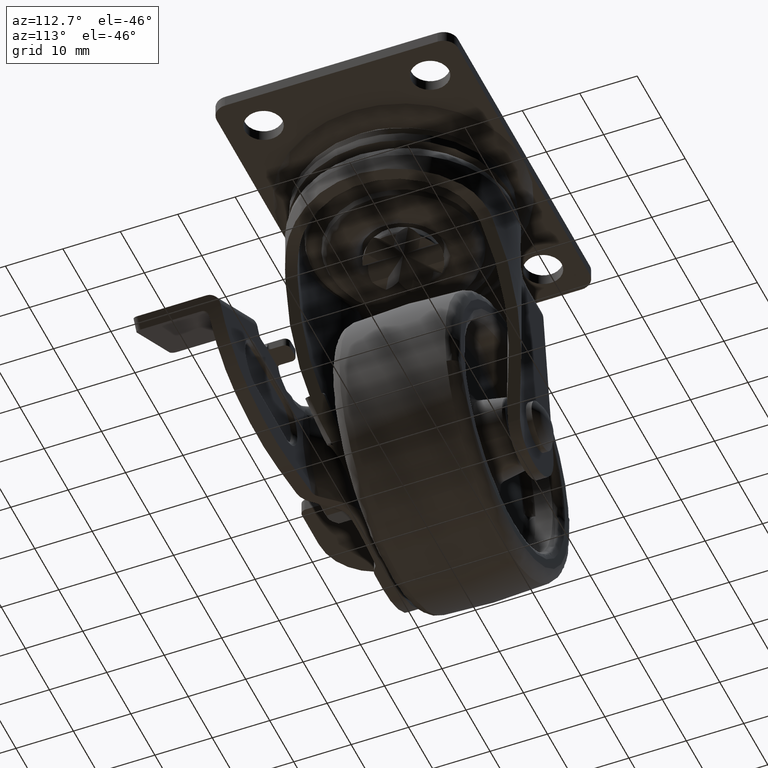
[diagram: clean part render]
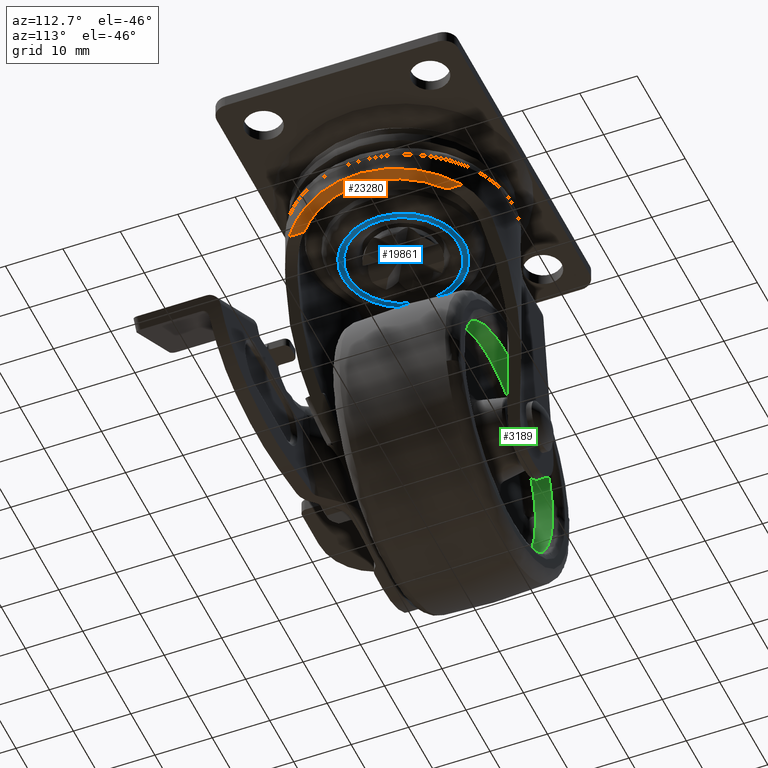
[diagram: same view with three faces highlighted in distinct colors, each labeled with its STEP entity id]
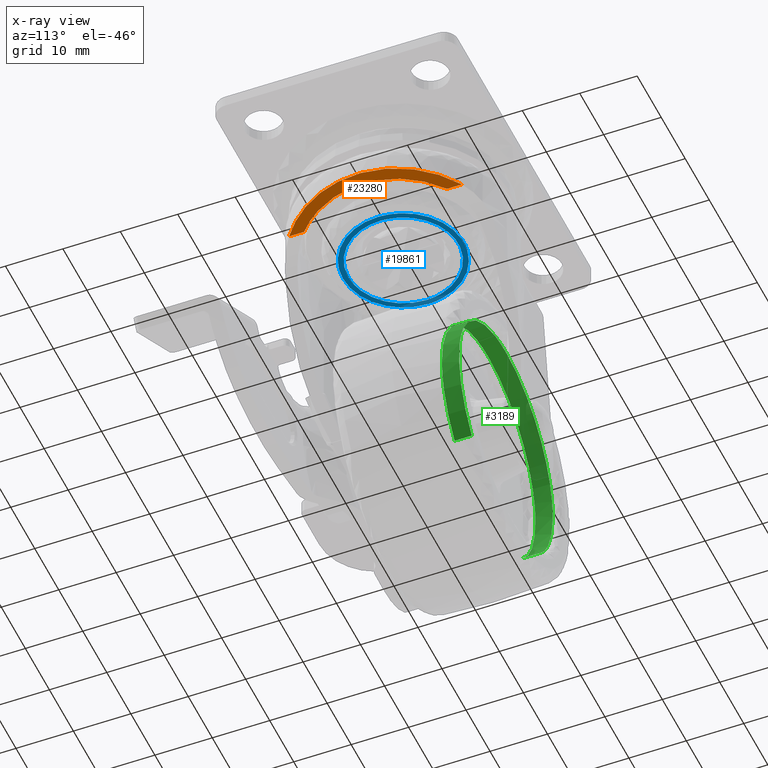
[diagram: x-ray of the same camera — body ghosted, the three highlighted faces saturated]
A machine part, auxiliary view with three faces highlighted in distinct colors.
The next image is the same camera in x-ray (body ghosted, the three faces saturated) — at least one of them is partly hidden behind the body in this view.
Their STEP definitions:

[orange] entity #23280 — the highlighted face is a freeform B-spline surface patch.
#22563=CARTESIAN_POINT('',(11.585635205794100,12.441189882919600,-16.072033567300700));
#22564=VERTEX_POINT('',#22563);
#22592=CARTESIAN_POINT('',(11.585635205794100,-12.441189882919600,-16.072033567300700));
#22593=VERTEX_POINT('',#22592);
#22594=CARTESIAN_POINT('',(11.585635205794100,12.441189882919600,-16.072033567300679));
#22595=CARTESIAN_POINT('',(17.000438000000027,7.398942413689673,-15.070621467935686));
#22596=CARTESIAN_POINT('',(17.000438000000031,4.163662E-015,-15.070621467935689));
#22597=CARTESIAN_POINT('',(17.000438000000027,-7.398942413689666,-15.070621467935686));
#22598=CARTESIAN_POINT('',(11.585635205794100,-12.441189882919600,-16.072033567300679));
#22606=(BOUNDED_CURVE()B_SPLINE_CURVE(2,(#22594,#22595,#22596,#22597,#22598),.UNSPECIFIED.,.F.,.U.)B_SPLINE_CURVE_WITH_KNOTS((3,2,3),(0.0,0.500000000000000,1.0),.UNSPECIFIED.)CURVE()GEOMETRIC_REPRESENTATION_ITEM()RATIONAL_B_SPLINE_CURVE((1.0,0.916919349936548,1.0,0.916919349936548,1.0))REPRESENTATION_ITEM(''));
#22607=EDGE_CURVE('',#22564,#22593,#22606,.T.);
#22951=CARTESIAN_POINT('',(11.585635205794100,-15.059322883279149,-16.072033567300700));
#22952=VERTEX_POINT('',#22951);
#22980=CARTESIAN_POINT('',(11.585635205794100,15.059322883279600,-16.072033567300700));
#22981=VERTEX_POINT('',#22980);
#22982=CARTESIAN_POINT('',(11.585635205794100,15.059322883279600,-16.072033567300700));
#22983=CARTESIAN_POINT('',(19.000437999999974,9.355085496329954,-14.700742032829934));
#22984=CARTESIAN_POINT('',(19.000437999999981,3.759121E-013,-14.700742032829931));
#22985=CARTESIAN_POINT('',(19.000437999999974,-9.355085496329487,-14.700742032829934));
#22986=CARTESIAN_POINT('',(11.585635205794100,-15.059322883279149,-16.072033567300700));
#22994=(BOUNDED_CURVE()B_SPLINE_CURVE(2,(#22982,#22983,#22984,#22985,#22986),.UNSPECIFIED.,.F.,.U.)B_SPLINE_CURVE_WITH_KNOTS((3,2,3),(0.0,0.500000000000000,1.0),.UNSPECIFIED.)CURVE()GEOMETRIC_REPRESENTATION_ITEM()RATIONAL_B_SPLINE_CURVE((1.0,0.897147485466418,1.0,0.897147485466418,1.0))REPRESENTATION_ITEM(''));
#22995=EDGE_CURVE('',#22981,#22952,#22994,.T.);
#23261=CARTESIAN_POINT('',(19.370808124361819,-16.563749746407570,-14.632245886640460));
#23262=CARTESIAN_POINT('',(11.215266142128280,-16.563749746407570,-16.140529517325380));
#23263=CARTESIAN_POINT('',(19.370808124361819,16.563750015689699,-14.632245886640460));
#23264=CARTESIAN_POINT('',(11.215266142128280,16.563750015689699,-16.140529517325380));
#23265=B_SPLINE_SURFACE_WITH_KNOTS('',1,1,((#23261,#23263),(#23262,#23264)),.UNSPECIFIED.,.F.,.F.,.U.,(2,2),(2,2),(0.0,8.293840156077641),(0.0,33.127499762097273),.UNSPECIFIED.);
#23266=CARTESIAN_POINT('',(11.585635205794100,-12.441189882919600,-16.072033567300700));
#23267=CARTESIAN_POINT('',(11.585635205794100,-15.059322883279149,-16.072033567300700));
#23268=QUASI_UNIFORM_CURVE('',1,(#23266,#23267),.UNSPECIFIED.,.F.,.U.);
#23269=EDGE_CURVE('',#22593,#22952,#23268,.T.);
#23270=ORIENTED_EDGE('',*,*,#23269,.F.);
#23271=ORIENTED_EDGE('',*,*,#22607,.F.);
#23272=CARTESIAN_POINT('',(11.585635205794100,15.059322883279600,-16.072033567300700));
#23273=CARTESIAN_POINT('',(11.585635205794100,12.441189882919600,-16.072033567300700));
#23274=QUASI_UNIFORM_CURVE('',1,(#23272,#23273),.UNSPECIFIED.,.F.,.U.);
#23275=EDGE_CURVE('',#22981,#22564,#23274,.T.);
#23276=ORIENTED_EDGE('',*,*,#23275,.F.);
#23277=ORIENTED_EDGE('',*,*,#22995,.T.);
#23278=EDGE_LOOP('',(#23270,#23271,#23276,#23277));
#23279=FACE_OUTER_BOUND('',#23278,.T.);
#23280=ADVANCED_FACE('',(#23279),#23265,.T.);

[blue] entity #19861 — the highlighted face is a freeform B-spline surface patch.
#18602=CARTESIAN_POINT('',(9.564145900113472,0.722489222959065,-16.562874000000011));
#18603=VERTEX_POINT('',#18602);
#18616=CARTESIAN_POINT('',(9.591396014218789,7.105427E-015,-16.562874000000001));
#18617=VERTEX_POINT('',#18616);
#18618=CARTESIAN_POINT('',(9.591396014218789,7.105427E-015,-16.562874000000001));
#18619=CARTESIAN_POINT('',(9.591396695948397,0.241057238134339,-16.562874000000011));
#18620=CARTESIAN_POINT('',(9.582305653597558,0.482117510398398,-16.562874000000001));
#18621=CARTESIAN_POINT('',(9.564145900113472,0.722489222959065,-16.562874000000011));
#18622=B_SPLINE_CURVE_WITH_KNOTS('',3,(#18618,#18619,#18620,#18621),.UNSPECIFIED.,.F.,.U.,(4,4),(1.860069E-010,0.723176899292491),.UNSPECIFIED.);
#18623=EDGE_CURVE('',#18617,#18603,#18622,.T.);
#18625=CARTESIAN_POINT('',(0.000002413585038,-9.591396014218478,-16.562874000000001));
#18626=VERTEX_POINT('',#18625);
#18627=CARTESIAN_POINT('',(0.000002413585038,-9.591396014218478,-16.562874000000001));
#18628=CARTESIAN_POINT('',(0.823960176572537,-9.591669277182698,-16.562874000000019));
#18629=CARTESIAN_POINT('',(2.000857985566206,-9.438746306510630,-16.562873999999979));
#18630=CARTESIAN_POINT('',(3.608470784764561,-8.918542980669082,-16.562874000000001));
#18631=CARTESIAN_POINT('',(4.779203623679139,-8.356005916366096,-16.562874000000029));
#18632=CARTESIAN_POINT('',(6.179469555039098,-7.408059937972750,-16.562873999999969));
#18633=CARTESIAN_POINT('',(7.387876463286015,-6.214400392214053,-16.562874000000040));
#18634=CARTESIAN_POINT('',(8.292508953380459,-4.878037446799239,-16.562874000000001));
#18635=CARTESIAN_POINT('',(8.990697151732803,-3.469800081640678,-16.562873999999940));
#18636=CARTESIAN_POINT('',(9.471941048680188,-1.883276438117634,-16.562874000000122));
#18637=CARTESIAN_POINT('',(9.591438063673916,-0.588514529871341,-16.562873999999809));
#18638=CARTESIAN_POINT('',(9.591396014218789,7.105427E-015,-16.562874000000001));
#18639=B_SPLINE_CURVE_WITH_KNOTS('',3,(#18627,#18628,#18629,#18630,#18631,#18632,#18633,#18634,#18635,#18636,#18637,#18638),.UNSPECIFIED.,.F.,.U.,(4,1,1,1,1,1,1,1,1,4),(0.000000108897614,2.471783733604775,3.531143463974875,5.061312324748354,6.356082658366949,8.592422558902989,10.122601339134381,11.181960505678770,13.300658708963400,15.066222801196620),.UNSPECIFIED.);
#18640=EDGE_CURVE('',#18626,#18617,#18639,.T.);
#18642=CARTESIAN_POINT('',(-9.591396014218789,7.105427E-015,-16.562874000000001));
#18643=VERTEX_POINT('',#18642);
#18644=CARTESIAN_POINT('',(-9.591396014218789,7.105427E-015,-16.562874000000001));
#18645=CARTESIAN_POINT('',(-9.591671883400570,-0.823959440116971,-16.562873999999990));
#18646=CARTESIAN_POINT('',(-9.438736836206523,-2.000850926993686,-16.562874000000029));
#18647=CARTESIAN_POINT('',(-8.906461060558360,-3.645868428751559,-16.562874000000011));
#18648=CARTESIAN_POINT('',(-8.353731050619174,-4.778322561025876,-16.562874000000001));
#18649=CARTESIAN_POINT('',(-7.538594307543798,-5.982216863446369,-16.562874000000001));
#18650=CARTESIAN_POINT('',(-6.613007676613293,-7.003456810198022,-16.562874000000001));
#18651=CARTESIAN_POINT('',(-5.322980296907676,-8.035957000593182,-16.562874000000019));
#18652=CARTESIAN_POINT('',(-3.734240933605903,-8.910496129628674,-16.562873999999940));
#18653=CARTESIAN_POINT('',(-1.883266034758730,-9.471945602968969,-16.562874000000178));
#18654=CARTESIAN_POINT('',(-0.588513897737654,-9.591437421881643,-16.562873999999908));
#18655=CARTESIAN_POINT('',(0.000002413585038,-9.591396014218478,-16.562874000000001));
#18656=B_SPLINE_CURVE_WITH_KNOTS('',3,(#18644,#18645,#18646,#18647,#18648,#18649,#18650,#18651,#18652,#18653,#18654,#18655),.UNSPECIFIED.,.F.,.U.,(4,1,1,1,1,1,1,1,1,4),(0.000000108053708,2.471784179223775,3.531144100895547,5.179027474004558,6.238365157846060,7.886178764104459,9.298677229889936,11.181962525164320,13.300661111821750,15.066225521886560),.UNSPECIFIED.);
#18657=EDGE_CURVE('',#18643,#18626,#18656,.T.);
#18659=CARTESIAN_POINT('',(-0.722489223907958,9.564145896489361,-16.562874000000011));
#18660=VERTEX_POINT('',#18659);
#18661=CARTESIAN_POINT('',(-0.722489223907958,9.564145896489361,-16.562874000000011));
#18662=CARTESIAN_POINT('',(-1.318421161794334,9.519186189306605,-16.562874000000019));
#18663=CARTESIAN_POINT('',(-2.464810414995618,9.323633197431542,-16.562873999999990));
#18664=CARTESIAN_POINT('',(-4.296478319275813,8.655342230796080,-16.562874000000019));
#18665=CARTESIAN_POINT('',(-6.018010768787725,7.575485079896357,-16.562873999999979));
#18666=CARTESIAN_POINT('',(-7.368748549731413,6.217343394626576,-16.562874000000001));
#18667=CARTESIAN_POINT('',(-8.330523505130193,4.833850394061379,-16.562874000000011));
#18668=CARTESIAN_POINT('',(-9.080557583659708,3.280651350078131,-16.562874000000011));
#18669=CARTESIAN_POINT('',(-9.510184828870989,1.606125481453510,-16.562873999999979));
#18670=CARTESIAN_POINT('',(-9.591399032282299,0.448209533879157,-16.562874000000029));
#18671=CARTESIAN_POINT('',(-9.591396014218789,7.105427E-015,-16.562874000000001));
#18672=B_SPLINE_CURVE_WITH_KNOTS('',3,(#18661,#18662,#18663,#18664,#18665,#18666,#18667,#18668,#18669,#18670,#18671),.UNSPECIFIED.,.F.,.U.,(4,1,1,1,1,1,1,1,4),(0.000000112667049,1.792875925166971,3.473703610101756,5.826873773735255,7.843805587651456,9.188484514817722,10.869333797633850,12.998390384888349,14.343036965351990),.UNSPECIFIED.);
#18673=EDGE_CURVE('',#18660,#18643,#18672,.T.);
#18720=CARTESIAN_POINT('',(9.564145900113472,0.722489222959065,-16.562874000000011));
#18721=CARTESIAN_POINT('',(9.508133565598159,1.465852330917637,-16.562874000000001));
#18722=CARTESIAN_POINT('',(9.221543984540261,2.939303804224434,-16.562874000000011));
#18723=CARTESIAN_POINT('',(8.309210672344502,4.954569224516284,-16.562873999999979));
#18724=CARTESIAN_POINT('',(7.159142359130231,6.460355376008159,-16.562873999999962));
#18725=CARTESIAN_POINT('',(5.824140032705816,7.681036234371709,-16.562874000000171));
#18726=CARTESIAN_POINT('',(4.461491663160724,8.552268137580565,-16.562873999999962));
#18727=CARTESIAN_POINT('',(2.965699462760102,9.157961554860069,-16.562873999999990));
#18728=CARTESIAN_POINT('',(1.284017061169066,9.565168573717129,-16.562873999999919));
#18729=CARTESIAN_POINT('',(0.059982502025287,9.623444967760840,-16.562874000000221));
#18730=CARTESIAN_POINT('',(-0.722489223907958,9.564145896489361,-16.562874000000011));
#18731=B_SPLINE_CURVE_WITH_KNOTS('',3,(#18720,#18721,#18722,#18723,#18724,#18725,#18726,#18727,#18728,#18729,#18730),.UNSPECIFIED.,.F.,.U.,(4,1,1,1,1,1,1,1,4),(0.000000108474769,2.236390084118208,4.472788343418111,6.591514208416223,7.886178048010677,9.887205893042758,11.417374778965289,12.712130396051670,15.066224154404379),.UNSPECIFIED.);
#18732=EDGE_CURVE('',#18603,#18660,#18731,.T.);
#19116=CARTESIAN_POINT('',(-10.204727921895440,2.620128802562762,-16.562874000000001));
#19117=VERTEX_POINT('',#19116);
#19128=CARTESIAN_POINT('',(-10.535727143067721,7.105427E-015,-16.562874000000001));
#19129=VERTEX_POINT('',#19128);
#19130=CARTESIAN_POINT('',(-10.535727143067721,7.105427E-015,-16.562874000000001));
#19131=CARTESIAN_POINT('',(-10.535830657669891,0.882649054236113,-16.562874000000051));
#19132=CARTESIAN_POINT('',(-10.424411735072731,1.765246071222685,-16.562873999999852));
#19133=CARTESIAN_POINT('',(-10.204727921895440,2.620128802562762,-16.562874000000001));
#19134=B_SPLINE_CURVE_WITH_KNOTS('',3,(#19130,#19131,#19132,#19133),.UNSPECIFIED.,.F.,.U.,(4,4),(2.504992E-009,2.647923849548842),.UNSPECIFIED.);
#19135=EDGE_CURVE('',#19129,#19117,#19134,.T.);
#19137=CARTESIAN_POINT('',(-0.000002317485498,-10.535727143067460,-16.562874000000001));
#19138=VERTEX_POINT('',#19137);
#19139=CARTESIAN_POINT('',(-0.000002317485498,-10.535727143067460,-16.562874000000001));
#19140=CARTESIAN_POINT('',(-0.861972103785759,-10.535937033496589,-16.562873999999979));
#19141=CARTESIAN_POINT('',(-2.111682882235669,-10.381469324518660,-16.562874000000019));
#19142=CARTESIAN_POINT('',(-4.049412717626333,-9.780684067310382,-16.562874000000011));
#19143=CARTESIAN_POINT('',(-5.559909563473181,-9.020375946108590,-16.562874000000001));
#19144=CARTESIAN_POINT('',(-7.004290220179627,-7.921244765639348,-16.562874000000001));
#19145=CARTESIAN_POINT('',(-8.302176356260933,-6.591369933524049,-16.562873999999919));
#19146=CARTESIAN_POINT('',(-9.329203608090023,-5.033693053511432,-16.562874000000189));
#19147=CARTESIAN_POINT('',(-9.974008759191312,-3.476516600239877,-16.562873999999908));
#19148=CARTESIAN_POINT('',(-10.411393475916810,-1.896235899227362,-16.562874000000068));
#19149=CARTESIAN_POINT('',(-10.535866891439040,-0.775771977009699,-16.562874000000029));
#19150=CARTESIAN_POINT('',(-10.535727143067721,7.105427E-015,-16.562874000000001));
#19151=B_SPLINE_CURVE_WITH_KNOTS('',3,(#19139,#19140,#19141,#19142,#19143,#19144,#19145,#19146,#19147,#19148,#19149,#19150),.UNSPECIFIED.,.F.,.U.,(4,1,1,1,1,1,1,1,1,4),(0.000000096672995,2.585851243666864,3.749514194098916,6.076820841956101,7.628357887952232,9.179831435969547,11.636415463538469,13.187960626811480,14.222301744263870,16.549584031236751),.UNSPECIFIED.);
#19152=EDGE_CURVE('',#19138,#19129,#19151,.T.);
#19154=CARTESIAN_POINT('',(10.535727143067721,7.105427E-015,-16.562874000000001));
#19155=VERTEX_POINT('',#19154);
#19156=CARTESIAN_POINT('',(10.535727143067721,7.105427E-015,-16.562874000000001));
#19157=CARTESIAN_POINT('',(10.535813735177680,-0.689562494354370,-16.562874000000019));
#19158=CARTESIAN_POINT('',(10.429539823153959,-1.766953672971254,-16.562873999999979));
#19159=CARTESIAN_POINT('',(9.967623455281366,-3.564614385290815,-16.562874000000029));
#19160=CARTESIAN_POINT('',(9.247182757922715,-5.189886027338473,-16.562873999999979));
#19161=CARTESIAN_POINT('',(8.151147696218311,-6.745941069004132,-16.562874000000019));
#19162=CARTESIAN_POINT('',(6.974119950326079,-7.952180491899857,-16.562874000000051));
#19163=CARTESIAN_POINT('',(5.418668827121584,-9.120930189548506,-16.562873999999891));
#19164=CARTESIAN_POINT('',(3.534477810151036,-10.012060989618680,-16.562873999999780));
#19165=CARTESIAN_POINT('',(1.594592981203727,-10.460000152793640,-16.562874000000392));
#19166=CARTESIAN_POINT('',(0.474062109898618,-10.535737814419640,-16.562873999999631));
#19167=CARTESIAN_POINT('',(-0.000002317485498,-10.535727143067460,-16.562874000000001));
#19168=B_SPLINE_CURVE_WITH_KNOTS('',3,(#19156,#19157,#19158,#19159,#19160,#19161,#19162,#19163,#19164,#19165,#19166,#19167),.UNSPECIFIED.,.F.,.U.,(4,1,1,1,1,1,1,1,1,4),(0.000000095870444,2.068677771113013,3.232329842057649,5.559646874041814,7.369750863725860,8.921228910686899,10.602076020082199,13.187962708725751,15.127383610719690,16.549586643599369),.UNSPECIFIED.);
#19169=EDGE_CURVE('',#19155,#19138,#19168,.T.);
#19171=CARTESIAN_POINT('',(0.798801509483480,10.505401610656110,-16.562874000000001));
#19172=VERTEX_POINT('',#19171);
#19173=CARTESIAN_POINT('',(0.798801509483480,10.505401610656110,-16.562874000000001));
#19174=CARTESIAN_POINT('',(1.575868042444542,10.446458274958220,-16.562874000000001));
#19175=CARTESIAN_POINT('',(2.954529442167114,10.185593762438620,-16.562874000000029));
#19176=CARTESIAN_POINT('',(4.595094983146982,9.520032024087048,-16.562873999999969));
#19177=CARTESIAN_POINT('',(5.909702892395753,8.757625523795079,-16.562873999999990));
#19178=CARTESIAN_POINT('',(7.052323784932801,7.881794069956160,-16.562874000000061));
#19179=CARTESIAN_POINT('',(8.134770322263114,6.754181647402375,-16.562874000000040));
#19180=CARTESIAN_POINT('',(8.969705159894286,5.582109207985770,-16.562873999999969));
#19181=CARTESIAN_POINT('',(9.647100526039990,4.313667539296032,-16.562874000000029));
#19182=CARTESIAN_POINT('',(10.321468558480261,2.501768866927255,-16.562874000000090));
#19183=CARTESIAN_POINT('',(10.536078066749701,0.984410989494798,-16.562873999999852));
#19184=CARTESIAN_POINT('',(10.535727143067721,7.105427E-015,-16.562874000000001));
#19185=B_SPLINE_CURVE_WITH_KNOTS('',3,(#19173,#19174,#19175,#19176,#19177,#19178,#19179,#19180,#19181,#19182,#19183,#19184),.UNSPECIFIED.,.F.,.U.,(4,1,1,1,1,1,1,1,1,4),(0.000000093989787,2.337884292561999,4.183597409404603,5.291020039287767,6.890664384272052,8.490226073520468,9.966775217823162,11.197258703391279,12.796885196023320,15.750002208399151),.UNSPECIFIED.);
#19186=EDGE_CURVE('',#19172,#19155,#19185,.T.);
#19221=CARTESIAN_POINT('',(-10.204727921895440,2.620128802562762,-16.562874000000001));
#19222=CARTESIAN_POINT('',(-9.938675924485235,3.658622627163266,-16.562874000000001));
#19223=CARTESIAN_POINT('',(-9.222299230518063,5.332034851253163,-16.562873999999979));
#19224=CARTESIAN_POINT('',(-7.688088127884761,7.308285539063438,-16.562874000000001));
#19225=CARTESIAN_POINT('',(-6.228136543625682,8.560526710318127,-16.562874000000001));
#19226=CARTESIAN_POINT('',(-4.845525940942355,9.389290787535959,-16.562874000000001));
#19227=CARTESIAN_POINT('',(-3.508432708323113,9.969185719788078,-16.562874000000001));
#19228=CARTESIAN_POINT('',(-1.659717042399119,10.486829985920030,-16.562874000000001));
#19229=CARTESIAN_POINT('',(-0.155561769070012,10.578314649846201,-16.562873999999990));
#19230=CARTESIAN_POINT('',(0.798801509483480,10.505401610656110,-16.562874000000001));
#19231=B_SPLINE_CURVE_WITH_KNOTS('',3,(#19221,#19222,#19223,#19224,#19225,#19226,#19227,#19228,#19229,#19230),.UNSPECIFIED.,.F.,.U.,(4,1,1,1,1,1,1,4),(0.000000095998104,3.215882522509117,5.398122560446344,7.465420054700616,8.958520623850287,10.221921452676650,11.829887684264071,14.701206060569920),.UNSPECIFIED.);
#19232=EDGE_CURVE('',#19117,#19172,#19231,.T.);
#19842=CARTESIAN_POINT('',(-11.588246639427091,-11.588170903522199,-16.562874000000001));
#19843=CARTESIAN_POINT('',(11.588246827820569,-11.588170903522199,-16.562874000000001));
#19844=CARTESIAN_POINT('',(-11.588246639427091,11.586654857654111,-16.562874000000001));
#19845=CARTESIAN_POINT('',(11.588246827820569,11.586654857654120,-16.562874000000001));
#19846=B_SPLINE_SURFACE_WITH_KNOTS('',1,1,((#19842,#19844),(#19843,#19845)),.UNSPECIFIED.,.F.,.F.,.U.,(2,2),(2,2),(0.0,23.176493467247660),(0.0,23.174825761176319),.UNSPECIFIED.);
#19847=ORIENTED_EDGE('',*,*,#19135,.T.);
#19848=ORIENTED_EDGE('',*,*,#19232,.T.);
#19849=ORIENTED_EDGE('',*,*,#19186,.T.);
#19850=ORIENTED_EDGE('',*,*,#19169,.T.);
#19851=ORIENTED_EDGE('',*,*,#19152,.T.);
#19852=EDGE_LOOP('',(#19847,#19848,#19849,#19850,#19851));
#19853=FACE_OUTER_BOUND('',#19852,.T.);
#19854=ORIENTED_EDGE('',*,*,#18623,.T.);
#19855=ORIENTED_EDGE('',*,*,#18732,.T.);
#19856=ORIENTED_EDGE('',*,*,#18673,.T.);
#19857=ORIENTED_EDGE('',*,*,#18657,.T.);
#19858=ORIENTED_EDGE('',*,*,#18640,.T.);
#19859=EDGE_LOOP('',(#19854,#19855,#19856,#19857,#19858));
#19860=FACE_BOUND('',#19859,.T.);
#19861=ADVANCED_FACE('',(#19853,#19860),#19846,.F.);

[green] entity #3189 — the highlighted face is a freeform B-spline surface patch.
#3030=CARTESIAN_POINT('',(-5.790605407576720,9.575000000108675,-55.354136665004781));
#3031=CARTESIAN_POINT('',(6.819891595352718,9.575000000108675,-41.935337402096856));
#3032=CARTESIAN_POINT('',(-5.855720249533693,9.575000000108675,-28.578029564179619));
#3033=CARTESIAN_POINT('',(-19.278249685354083,9.575000000108675,-14.433634813713404));
#3034=CARTESIAN_POINT('',(-33.422644435820288,9.575000000108675,-27.856164249533791));
#3035=CARTESIAN_POINT('',(-47.567039186286493,9.575000000108675,-41.278693685354177));
#3036=CARTESIAN_POINT('',(-34.144509750466113,9.575000000108675,-55.423088435820389));
#3037=CARTESIAN_POINT('',(-5.790605407576720,6.423124995541608,-55.354136665004781));
#3038=CARTESIAN_POINT('',(6.819891595352718,6.423124995541606,-41.935337402096856));
#3039=CARTESIAN_POINT('',(-5.855720249533693,6.423124995541607,-28.578029564179619));
#3040=CARTESIAN_POINT('',(-19.278249685354083,6.423124995541607,-14.433634813713404));
#3041=CARTESIAN_POINT('',(-33.422644435820288,6.423124995541607,-27.856164249533791));
#3042=CARTESIAN_POINT('',(-47.567039186286493,6.423124995541607,-41.278693685354177));
#3043=CARTESIAN_POINT('',(-34.144509750466113,6.423124995541607,-55.423088435820389));
#3051=(BOUNDED_SURFACE()B_SPLINE_SURFACE(2,1,((#3030,#3037),(#3031,#3038),(#3032,#3039),(#3033,#3040),(#3034,#3041),(#3035,#3042),(#3036,#3043)),.UNSPECIFIED.,.F.,.F.,.U.)B_SPLINE_SURFACE_WITH_KNOTS((3,2,2,3),(2,2),(0.0,31.015422416232909,63.323154099808853,95.630885783384798),(0.0,3.151875004567069),.UNSPECIFIED.)GEOMETRIC_REPRESENTATION_ITEM()RATIONAL_B_SPLINE_SURFACE(((0.977505800795127,0.977505800795127),(0.718822509939086,0.718822509939086),(1.0,1.0),(0.707106781186548,0.707106781186548),(1.0,1.0),(0.707106781186548,0.707106781186548),(1.0,1.0)))REPRESENTATION_ITEM('')SURFACE());
#3052=CARTESIAN_POINT('',(-5.790605366708874,9.499999999960153,-55.354136621518727));
#3053=VERTEX_POINT('',#3052);
#3054=CARTESIAN_POINT('',(-2.153423753716453,9.499999999881887,-34.144108728260832));
#3055=VERTEX_POINT('',#3054);
#3056=CARTESIAN_POINT('',(-5.790605366708874,9.499999999960153,-55.354136621518727));
#3057=CARTESIAN_POINT('',(-4.814698109406035,9.499999999969875,-54.316083131032393));
#3058=CARTESIAN_POINT('',(-3.630599120517291,9.499999999979609,-52.740717734668102));
#3059=CARTESIAN_POINT('',(-2.278288966068695,9.499999999985979,-50.229837158335407));
#3060=CARTESIAN_POINT('',(-1.229160173155214,9.499999999986661,-47.637396737855262));
#3061=CARTESIAN_POINT('',(-0.541810259715351,9.499999999977327,-44.427138843682840));
#3062=CARTESIAN_POINT('',(-0.440925806711602,9.499999999955055,-40.855945773119977));
#3063=CARTESIAN_POINT('',(-0.917412364775557,9.499999999925116,-37.491652946010447));
#3064=CARTESIAN_POINT('',(-1.674963046054096,9.499999999897119,-35.230714528742112));
#3065=CARTESIAN_POINT('',(-2.153423753716453,9.499999999881887,-34.144108728260832));
#3066=B_SPLINE_CURVE_WITH_KNOTS('',3,(#3056,#3057,#3058,#3059,#3060,#3061,#3062,#3063,#3064,#3065),.UNSPECIFIED.,.F.,.U.,(4,1,1,1,1,1,1,4),(0.000000038539351,4.274210880913863,5.877043871963938,8.548442286032932,12.644540525415110,15.672103475234300,19.233959799188639,22.795799501813551),.UNSPECIFIED.);
#3067=EDGE_CURVE('',#3053,#3055,#3066,.T.);
#3068=ORIENTED_EDGE('',*,*,#3067,.F.);
#3069=CARTESIAN_POINT('',(-5.790605367958542,6.499999998619122,-55.354136622840713));
#3070=VERTEX_POINT('',#3069);
#3071=CARTESIAN_POINT('',(-5.790605366708874,9.499999999960153,-55.354136621518727));
#3072=CARTESIAN_POINT('',(-5.790605367958542,6.499999998619122,-55.354136622840713));
#3073=QUASI_UNIFORM_CURVE('',1,(#3071,#3072),.UNSPECIFIED.,.F.,.U.);
#3074=EDGE_CURVE('',#3053,#3070,#3073,.T.);
#3075=ORIENTED_EDGE('',*,*,#3074,.T.);
#3076=CARTESIAN_POINT('',(-0.502213593889751,6.499999995673866,-42.245589753352860));
#3077=VERTEX_POINT('',#3076);
#3078=CARTESIAN_POINT('',(-5.790605367958542,6.499999998619122,-55.354136622840713));
#3079=CARTESIAN_POINT('',(-4.835991671004768,6.499999998390964,-54.338663521586739));
#3080=CARTESIAN_POINT('',(-3.191684787060232,6.499999997901992,-52.162285166896382));
#3081=CARTESIAN_POINT('',(-1.760928730579505,6.499999997216458,-49.111430583307708));
#3082=CARTESIAN_POINT('',(-0.786746126068405,6.499999996477166,-45.820629974961058));
#3083=CARTESIAN_POINT('',(-0.520340682089623,6.499999996003886,-43.714563001107983));
#3084=CARTESIAN_POINT('',(-0.502213593889751,6.499999995673866,-42.245589753352860));
#3085=B_SPLINE_CURVE_WITH_KNOTS('',3,(#3078,#3079,#3080,#3081,#3082,#3083,#3084),.UNSPECIFIED.,.F.,.U.,(4,1,1,1,4),(0.000000018802632,4.181141224260477,8.136251994655861,10.057325999762810,14.464475636772439),.UNSPECIFIED.);
#3086=EDGE_CURVE('',#3070,#3077,#3085,.T.);
#3087=ORIENTED_EDGE('',*,*,#3086,.T.);
#3088=CARTESIAN_POINT('',(-20.000114999999901,6.500000000000000,-22.501118000000002));
#3089=VERTEX_POINT('',#3088);
#3090=CARTESIAN_POINT('',(-0.502213593889751,6.499999995673866,-42.245589753352860));
#3091=CARTESIAN_POINT('',(-0.487454100242248,6.499999996114561,-41.079843923193273));
#3092=CARTESIAN_POINT('',(-0.630679197961531,6.499999996787943,-39.228680352321248));
#3093=CARTESIAN_POINT('',(-1.278928924845151,6.499999997778289,-36.321030553814623));
#3094=CARTESIAN_POINT('',(-2.255921826704815,6.499999998603443,-33.713745156492116));
#3095=CARTESIAN_POINT('',(-3.616508072279876,6.499999999282141,-31.333984624516450));
#3096=CARTESIAN_POINT('',(-5.088809727027390,6.499999999786979,-29.369107410372600));
#3097=CARTESIAN_POINT('',(-6.998626092525421,6.500000000243050,-27.349293995883741));
#3098=CARTESIAN_POINT('',(-9.315150701621747,6.500000000536326,-25.590312088448119));
#3099=CARTESIAN_POINT('',(-11.871256058404141,6.500000000644872,-24.221498705367068));
#3100=CARTESIAN_POINT('',(-14.164176152704190,6.500000000612952,-23.337375357638599));
#3101=CARTESIAN_POINT('',(-16.904640629935919,6.500000000427573,-22.672183253478170));
#3102=CARTESIAN_POINT('',(-18.874474865409020,6.500000000178951,-22.501016461866168));
#3103=CARTESIAN_POINT('',(-20.000114999999901,6.500000000000000,-22.501118000000002));
#3104=B_SPLINE_CURVE_WITH_KNOTS('',3,(#3090,#3091,#3092,#3093,#3094,#3095,#3096,#3097,#3098,#3099,#3100,#3101,#3102,#3103),.UNSPECIFIED.,.F.,.U.,(4,1,1,1,1,1,1,1,1,1,1,4),(0.000000086395175,3.497498625708488,5.547800975833585,8.924733720070563,11.819265370153580,13.748934486176219,16.281584710194139,20.140919690371899,22.432423652403202,24.965121927829340,27.497829260323950,30.874736711226301),.UNSPECIFIED.);
#3105=EDGE_CURVE('',#3077,#3089,#3104,.T.);
#3106=ORIENTED_EDGE('',*,*,#3105,.T.);
#3107=CARTESIAN_POINT('',(-39.452088000672020,6.499999995652999,-40.640799575100168));
#3108=VERTEX_POINT('',#3107);
#3109=CARTESIAN_POINT('',(-20.000114999999901,6.500000000000000,-22.501118000000002));
#3110=CARTESIAN_POINT('',(-21.029087828096721,6.500000000000008,-22.501051320922919));
#3111=CARTESIAN_POINT('',(-23.163254089674680,6.499999999959447,-22.670427356776479));
#3112=CARTESIAN_POINT('',(-26.392873840085169,6.499999999767307,-23.472023277307478));
#3113=CARTESIAN_POINT('',(-29.154239838001480,6.499999999472470,-24.702701147270389));
#3114=CARTESIAN_POINT('',(-31.538555739712539,6.499999999109498,-26.217002549222659));
#3115=CARTESIAN_POINT('',(-33.568541530290382,6.499999998706523,-27.898748070384709));
#3116=CARTESIAN_POINT('',(-35.664113418961101,6.499999998148010,-30.229298714456888));
#3117=CARTESIAN_POINT('',(-37.541764955330557,6.499999997434037,-33.208611203530303));
#3118=CARTESIAN_POINT('',(-38.922432911106100,6.499999996577976,-36.781139077136856));
#3119=CARTESIAN_POINT('',(-39.361875360190680,6.499999995962769,-39.348188409554069));
#3120=CARTESIAN_POINT('',(-39.452088000672020,6.499999995652999,-40.640799575100168));
#3121=B_SPLINE_CURVE_WITH_KNOTS('',3,(#3109,#3110,#3111,#3112,#3113,#3114,#3115,#3116,#3117,#3118,#3119,#3120),.UNSPECIFIED.,.F.,.U.,(4,1,1,1,1,1,1,1,1,4),(0.000000075437214,3.086914943542890,6.402556423483507,9.946846833457208,12.119135266930130,14.863058322638519,17.835669208512719,21.494292698508382,25.381587966771239,29.268828355972001),.UNSPECIFIED.);
#3122=EDGE_CURVE('',#3089,#3108,#3121,.T.);
#3123=ORIENTED_EDGE('',*,*,#3122,.T.);
#3124=CARTESIAN_POINT('',(-34.144509714993937,6.500000000050486,-55.423088473200252));
#3125=VERTEX_POINT('',#3124);
#3126=CARTESIAN_POINT('',(-39.452088000672020,6.499999995652999,-40.640799575100168));
#3127=CARTESIAN_POINT('',(-39.513748492947023,6.499999995974112,-41.522673706513359));
#3128=CARTESIAN_POINT('',(-39.517503778839739,6.499999996705069,-43.590212643373697));
#3129=CARTESIAN_POINT('',(-39.068382132722547,6.499999997638236,-46.429247052804342));
#3130=CARTESIAN_POINT('',(-38.144577109338421,6.499999998516635,-49.322061666100950));
#3131=CARTESIAN_POINT('',(-36.688608855650308,6.499999999350909,-52.324196768107093));
#3132=CARTESIAN_POINT('',(-35.158970197352602,6.499999999830628,-54.354523985747718));
#3133=CARTESIAN_POINT('',(-34.144509714993937,6.500000000050486,-55.423088473200252));
#3134=B_SPLINE_CURVE_WITH_KNOTS('',3,(#3126,#3127,#3128,#3129,#3130,#3131,#3132,#3133),.UNSPECIFIED.,.F.,.U.,(4,1,1,1,1,4),(0.000000025490429,2.652096533331219,6.188253715066551,8.587750052360811,11.745043161790550,16.165223147710151),.UNSPECIFIED.);
#3135=EDGE_CURVE('',#3108,#3125,#3134,.T.);
#3136=ORIENTED_EDGE('',*,*,#3135,.T.);
#3137=CARTESIAN_POINT('',(-34.144509887367349,9.499999999999996,-55.423088662049473));
#3138=VERTEX_POINT('',#3137);
#3139=CARTESIAN_POINT('',(-34.144509887367349,9.499999999999996,-55.423088662049473));
#3140=CARTESIAN_POINT('',(-34.144509714993937,6.500000000050486,-55.423088473200252));
#3141=QUASI_UNIFORM_CURVE('',1,(#3139,#3140),.UNSPECIFIED.,.F.,.U.);
#3142=EDGE_CURVE('',#3138,#3125,#3141,.T.);
#3143=ORIENTED_EDGE('',*,*,#3142,.F.);
#3144=CARTESIAN_POINT('',(-39.499555999999878,9.500000000000000,-42.000560021521821));
#3145=VERTEX_POINT('',#3144);
#3146=CARTESIAN_POINT('',(-39.499555999999878,9.500000000000000,-42.000560021521821));
#3147=CARTESIAN_POINT('',(-39.499745358296863,9.500000000000009,-43.388477145907480));
#3148=CARTESIAN_POINT('',(-39.202021562595313,9.500000000000007,-46.164223758814643));
#3149=CARTESIAN_POINT('',(-38.078951571508611,9.499999999999966,-49.549915817279917));
#3150=CARTESIAN_POINT('',(-36.417982158550423,9.500000000000044,-52.690949105291693));
#3151=CARTESIAN_POINT('',(-35.100078751228892,9.499999999999821,-54.416489261990897));
#3152=CARTESIAN_POINT('',(-34.144509887367349,9.499999999999996,-55.423088662049473));
#3153=B_SPLINE_CURVE_WITH_KNOTS('',3,(#3146,#3147,#3148,#3149,#3150,#3151,#3152),.UNSPECIFIED.,.F.,.U.,(4,1,1,1,4),(0.000000019850521,4.163726786162055,8.327428565962379,10.640625057155340,14.804351823477241),.UNSPECIFIED.);
#3154=EDGE_CURVE('',#3145,#3138,#3153,.T.);
#3155=ORIENTED_EDGE('',*,*,#3154,.F.);
#3156=CARTESIAN_POINT('',(-20.000114999999901,9.500000000000000,-22.501118000000002));
#3157=VERTEX_POINT('',#3156);
#3158=CARTESIAN_POINT('',(-20.000114999999901,9.500000000000000,-22.501118000000002));
#3159=CARTESIAN_POINT('',(-21.236469798142149,9.499999999999986,-22.500970590004950));
#3160=CARTESIAN_POINT('',(-23.589462022970000,9.500000000000018,-22.725692118657321));
#3161=CARTESIAN_POINT('',(-27.209839174638059,9.500000000000027,-23.751294705445741));
#3162=CARTESIAN_POINT('',(-30.357916242978799,9.499999999999963,-25.348129700517958));
#3163=CARTESIAN_POINT('',(-33.279726054104792,9.500000000000057,-27.585446733722382));
#3164=CARTESIAN_POINT('',(-35.609867740489122,9.499999999999945,-30.124783282558191));
#3165=CARTESIAN_POINT('',(-37.551906311707178,9.500000000000020,-33.255028615471872));
#3166=CARTESIAN_POINT('',(-38.743613000096609,9.500000000000000,-36.316441517906611));
#3167=CARTESIAN_POINT('',(-39.372668819060223,9.500000000000002,-39.288584563310081));
#3168=CARTESIAN_POINT('',(-39.499598735018317,9.500000000000000,-41.083268683238707));
#3169=CARTESIAN_POINT('',(-39.499555999999878,9.500000000000000,-42.000560021521821));
#3170=B_SPLINE_CURVE_WITH_KNOTS('',3,(#3158,#3159,#3160,#3161,#3162,#3163,#3164,#3165,#3166,#3167,#3168,#3169),.UNSPECIFIED.,.F.,.U.,(4,1,1,1,1,1,1,1,1,4),(0.000000085742467,3.709037832608878,7.059187924856420,11.246868245466430,14.238053495894940,18.066721590056801,21.536497333728249,25.245589360551911,27.877826832147001,30.629698922135351),.UNSPECIFIED.);
#3171=EDGE_CURVE('',#3157,#3145,#3170,.T.);
#3172=ORIENTED_EDGE('',*,*,#3171,.F.);
#3173=CARTESIAN_POINT('',(-2.153423753716453,9.499999999881887,-34.144108728260832));
#3174=CARTESIAN_POINT('',(-2.602746961344630,9.499999999892234,-33.123180551470348));
#3175=CARTESIAN_POINT('',(-3.535986077900070,9.499999999909575,-31.417322166682251));
#3176=CARTESIAN_POINT('',(-5.528181129995666,9.499999999936184,-28.793785233127071));
#3177=CARTESIAN_POINT('',(-7.679106692319740,9.499999999956591,-26.773165511341730));
#3178=CARTESIAN_POINT('',(-9.973473698235251,9.499999999972392,-25.231874979045369));
#3179=CARTESIAN_POINT('',(-12.107457394713480,9.499999999983647,-24.112082937829751));
#3180=CARTESIAN_POINT('',(-14.479874359554250,9.499999999992586,-23.227823913450820));
#3181=CARTESIAN_POINT('',(-17.240911861741061,9.499999999998705,-22.632871322267011));
#3182=CARTESIAN_POINT('',(-19.060810036338069,9.499999999999993,-22.501076216037632));
#3183=CARTESIAN_POINT('',(-20.000114999999901,9.500000000000000,-22.501118000000002));
#3184=B_SPLINE_CURVE_WITH_KNOTS('',3,(#3173,#3174,#3175,#3176,#3177,#3178,#3179,#3180,#3181,#3182,#3183),.UNSPECIFIED.,.F.,.U.,(4,1,1,1,1,1,1,1,4),(0.000000040849297,3.346286392438831,5.811997286326808,9.862807280120054,12.152334019872949,14.089668749301209,17.083746870103280,19.725580136978380,22.543499243907121),.UNSPECIFIED.);
#3185=EDGE_CURVE('',#3055,#3157,#3184,.T.);
#3186=ORIENTED_EDGE('',*,*,#3185,.F.);
#3187=EDGE_LOOP('',(#3068,#3075,#3087,#3106,#3123,#3136,#3143,#3155,#3172,#3186));
#3188=FACE_OUTER_BOUND('',#3187,.T.);
#3189=ADVANCED_FACE('',(#3188),#3051,.F.);